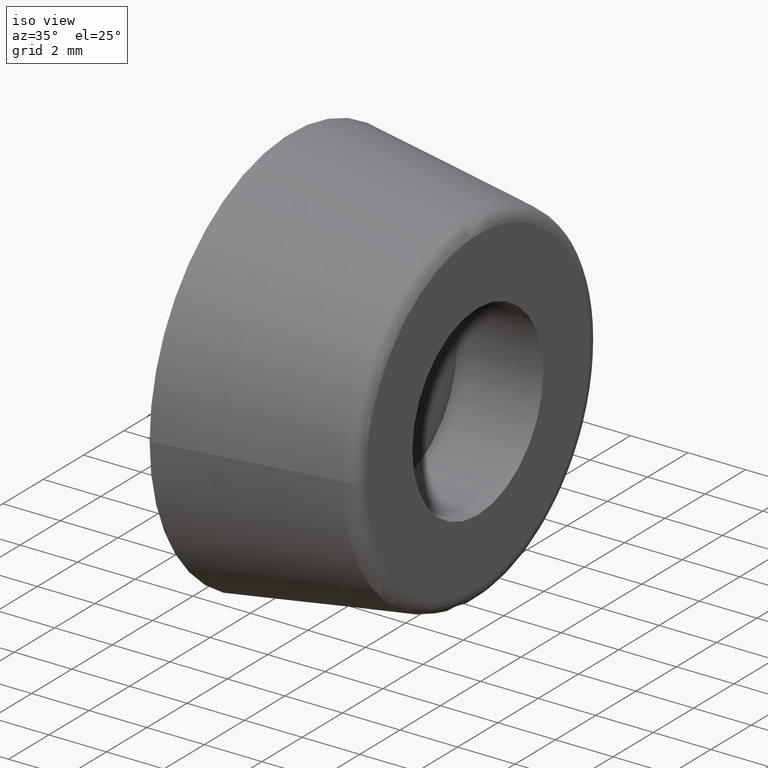
[diagram: clean part render]
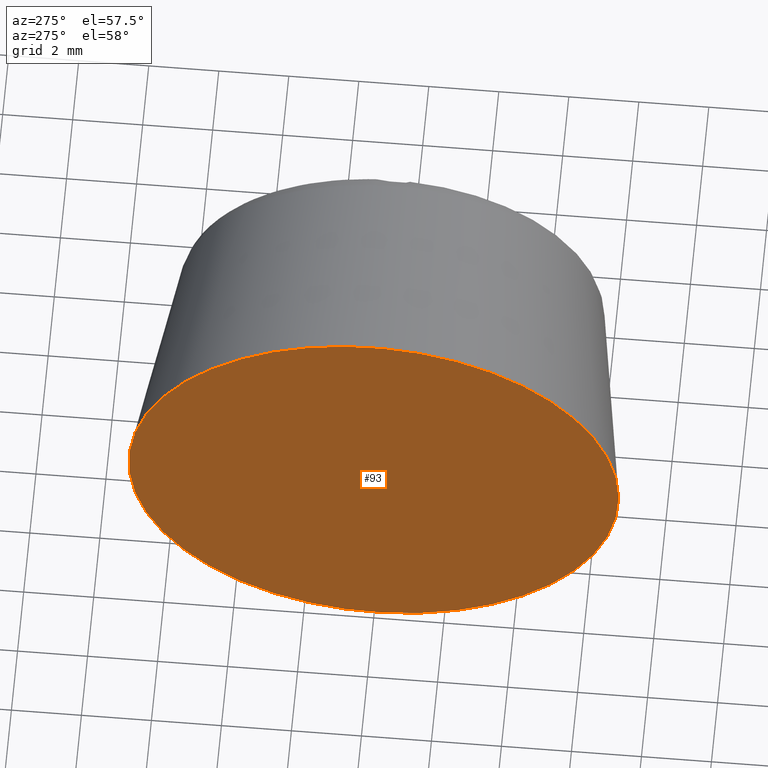
[diagram: tour spotlight — one face highlighted and labeled with its STEP entity id]
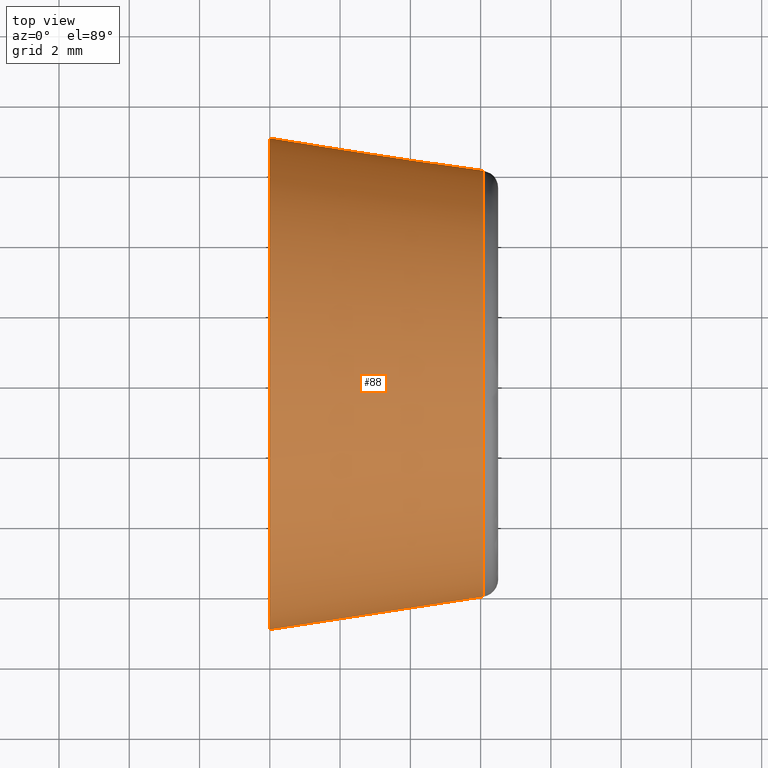
[diagram: tour spotlight — one face highlighted and labeled with its STEP entity id]
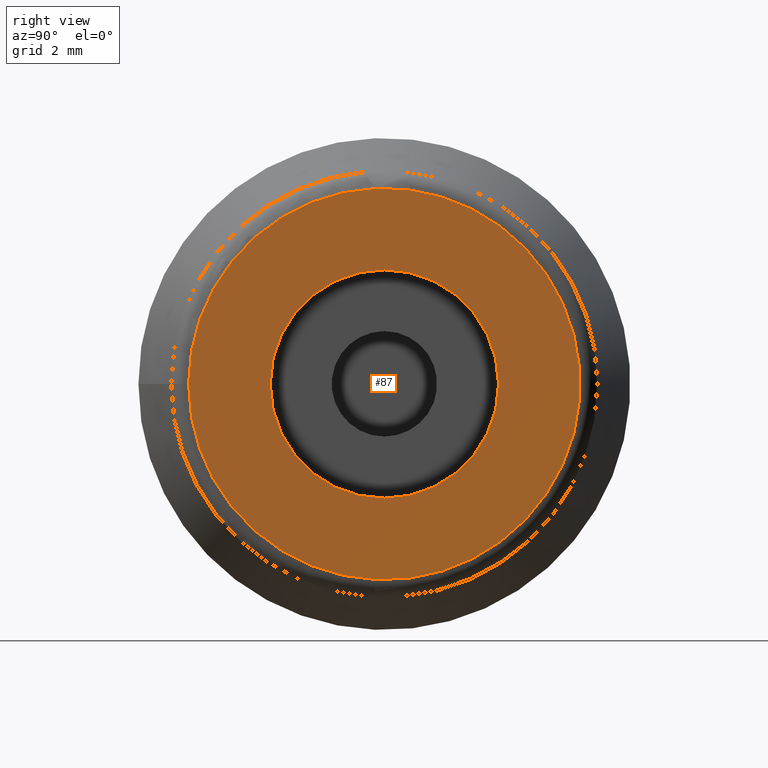
[diagram: tour spotlight — one face highlighted and labeled with its STEP entity id]
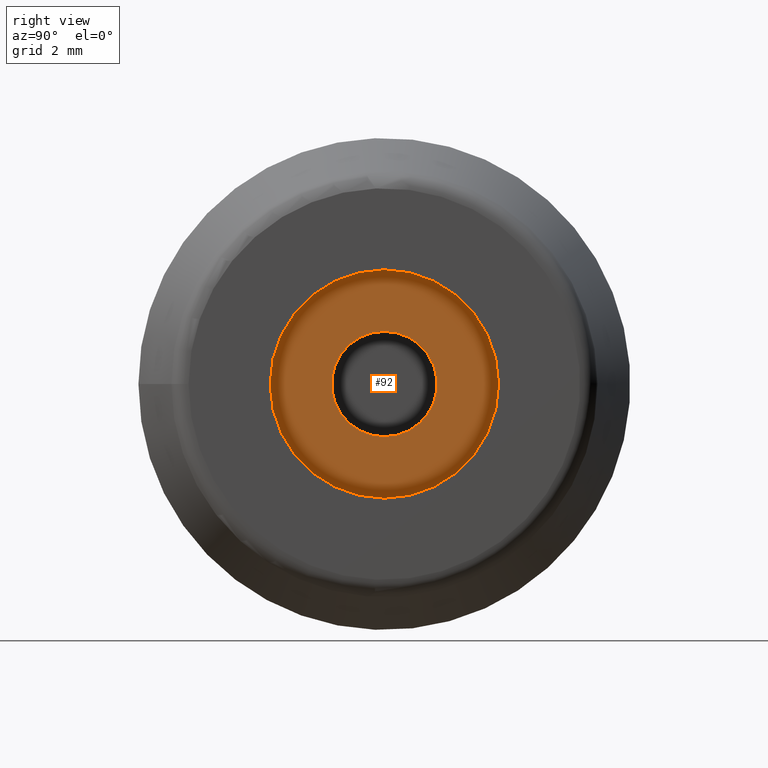
[diagram: tour spotlight — one face highlighted and labeled with its STEP entity id]
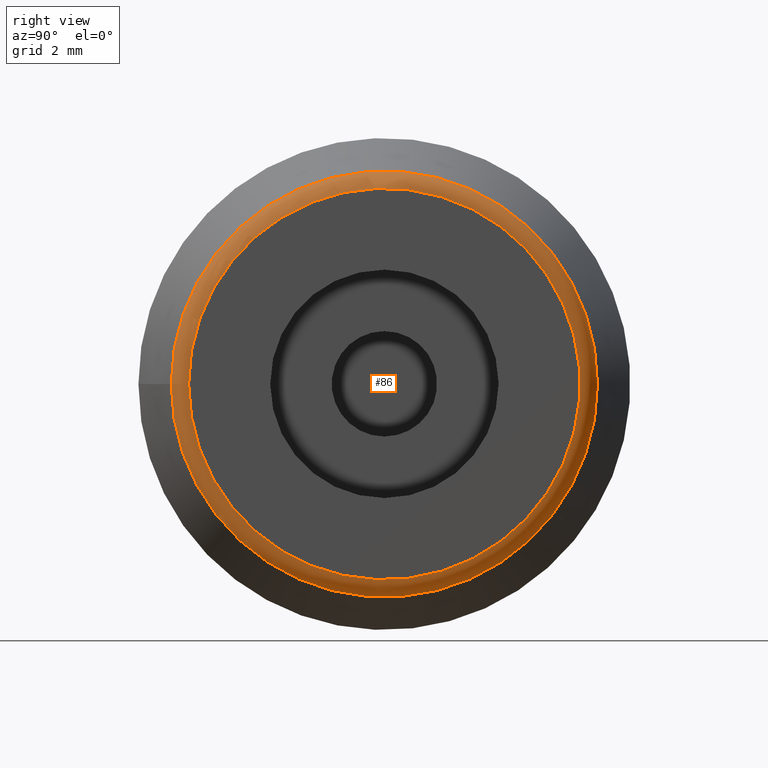
[diagram: tour spotlight — one face highlighted and labeled with its STEP entity id]
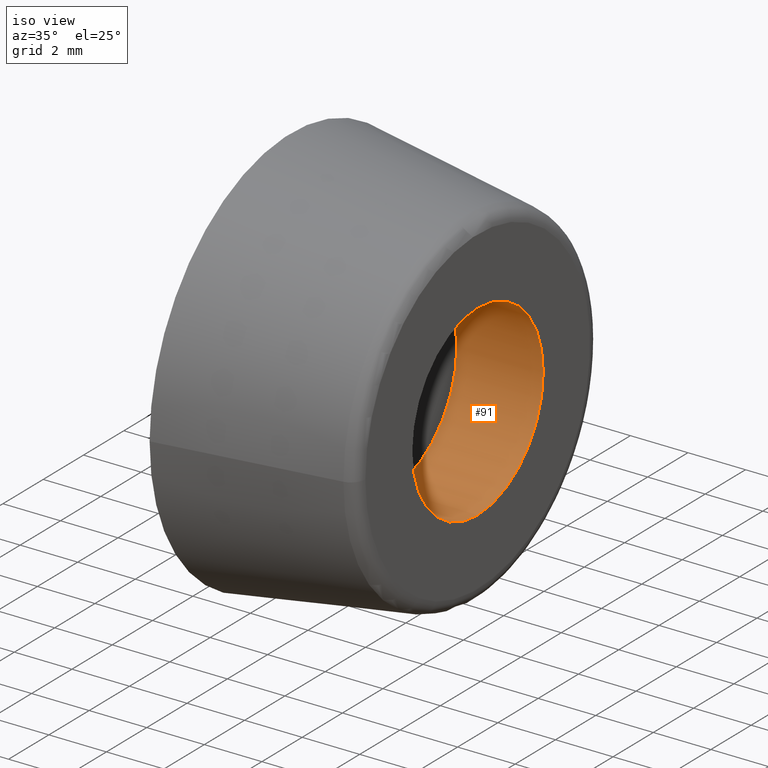
[diagram: tour spotlight — one face highlighted and labeled with its STEP entity id]
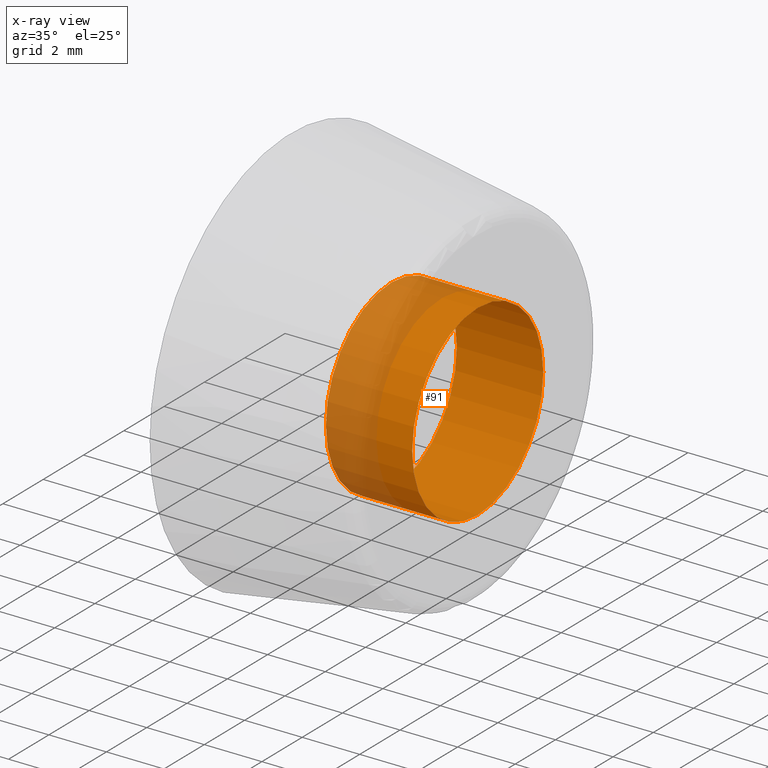
[diagram: x-ray of the same camera — body ghosted, this tour face saturated]
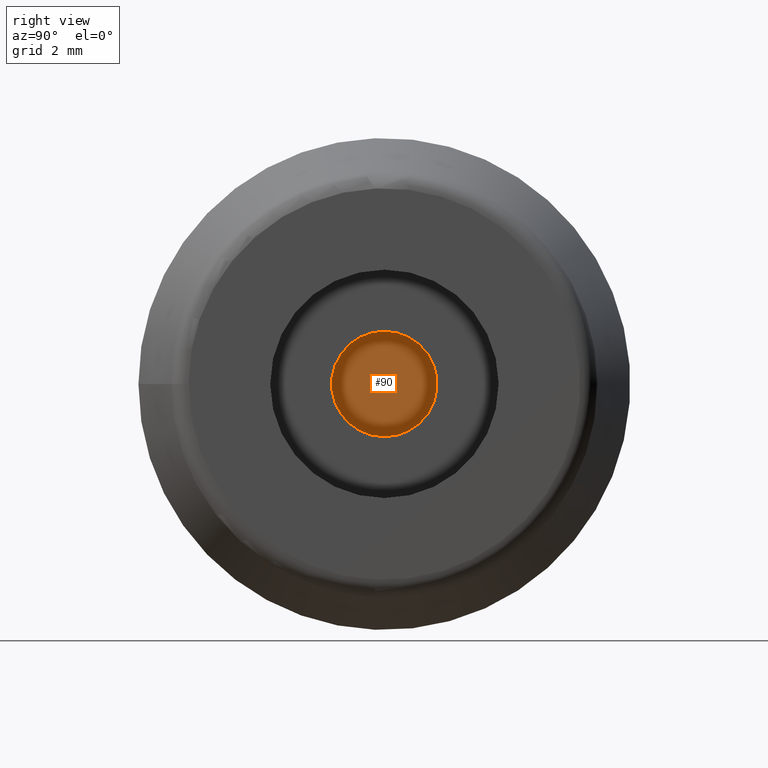
[diagram: tour spotlight — one face highlighted and labeled with its STEP entity id]
A machine part: a face-by-face anatomy tour. The part has 8 B-rep faces; the first image is the clean iso view, then the 7 largest visible faces are spotlighted one at a time (largest first), each with its STEP entity span.

Face 1 — auxiliary view, entity #93. In plain terms, the highlighted planar face has unit normal (1, 0, 0).
Definition (entity closure, byte-faithful):
#21=PLANE('',#110);
#35=FACE_OUTER_BOUND('',#49,.T.);
#49=EDGE_LOOP('',(#84));
#53=CIRCLE('',#102,7.);
#60=VERTEX_POINT('',#153);
#67=EDGE_CURVE('',#60,#60,#53,.T.);
#84=ORIENTED_EDGE('',*,*,#67,.F.);
#93=ADVANCED_FACE('',(#35),#21,.F.);
#102=AXIS2_PLACEMENT_3D('',#154,#125,#126);
#110=AXIS2_PLACEMENT_3D('',#165,#141,#142);
#125=DIRECTION('center_axis',(1.,0.,0.));
#126=DIRECTION('ref_axis',(0.,-1.,0.));
#141=DIRECTION('center_axis',(1.,0.,0.));
#142=DIRECTION('ref_axis',(0.,0.,-1.));
#153=CARTESIAN_POINT('',(0.,-7.,0.));
#154=CARTESIAN_POINT('Origin',(0.,0.,0.));
#165=CARTESIAN_POINT('Origin',(0.,0.,0.));

Face 2 — top view, entity #88. In plain terms, the highlighted conical surface has half-angle 8.746 deg.
Definition (entity closure, byte-faithful):
#17=CONICAL_SURFACE('',#101,7.,8.74616226255521);
#24=FACE_BOUND('',#41,.T.);
#30=FACE_OUTER_BOUND('',#40,.T.);
#40=EDGE_LOOP('',(#75));
#41=EDGE_LOOP('',(#76));
#51=CIRCLE('',#98,6.06522637044201);
#53=CIRCLE('',#102,7.);
#58=VERTEX_POINT('',#147);
#60=VERTEX_POINT('',#153);
#65=EDGE_CURVE('',#58,#58,#51,.T.);
#67=EDGE_CURVE('',#60,#60,#53,.T.);
#75=ORIENTED_EDGE('',*,*,#67,.T.);
#76=ORIENTED_EDGE('',*,*,#65,.F.);
#88=ADVANCED_FACE('',(#30,#24),#17,.T.);
#98=AXIS2_PLACEMENT_3D('',#148,#117,#118);
#101=AXIS2_PLACEMENT_3D('',#152,#123,#124);
#102=AXIS2_PLACEMENT_3D('',#154,#125,#126);
#117=DIRECTION('center_axis',(1.,0.,0.));
#118=DIRECTION('ref_axis',(0.,1.,1.22464679914735E-16));
#123=DIRECTION('center_axis',(-1.,0.,0.));
#124=DIRECTION('ref_axis',(0.,-1.,0.));
#125=DIRECTION('center_axis',(1.,0.,0.));
#126=DIRECTION('ref_axis',(0.,-1.,0.));
#147=CARTESIAN_POINT('',(6.07602859212697,-6.06522637044201,-1.48555201213318E-15));
#148=CARTESIAN_POINT('Origin',(6.07602859212697,0.,0.));
#152=CARTESIAN_POINT('Origin',(0.,0.,0.));
#153=CARTESIAN_POINT('',(0.,-7.,0.));
#154=CARTESIAN_POINT('Origin',(0.,0.,0.));

Face 3 — right view, entity #87. In plain terms, the highlighted planar face has unit normal (-1, 0, 0).
Definition (entity closure, byte-faithful):
#18=PLANE('',#99);
#23=FACE_BOUND('',#39,.T.);
#29=FACE_OUTER_BOUND('',#38,.T.);
#38=EDGE_LOOP('',(#73));
#39=EDGE_LOOP('',(#74));
#50=CIRCLE('',#97,5.5710405216167);
#52=CIRCLE('',#100,3.25);
#57=VERTEX_POINT('',#145);
#59=VERTEX_POINT('',#150);
#64=EDGE_CURVE('',#57,#57,#50,.T.);
#66=EDGE_CURVE('',#59,#59,#52,.T.);
#73=ORIENTED_EDGE('',*,*,#64,.F.);
#74=ORIENTED_EDGE('',*,*,#66,.T.);
#87=ADVANCED_FACE('',(#29,#23),#18,.F.);
#97=AXIS2_PLACEMENT_3D('',#146,#115,#116);
#99=AXIS2_PLACEMENT_3D('',#149,#119,#120);
#100=AXIS2_PLACEMENT_3D('',#151,#121,#122);
#115=DIRECTION('center_axis',(-1.,0.,0.));
#116=DIRECTION('ref_axis',(0.,1.,1.22464679914735E-16));
#119=DIRECTION('center_axis',(-1.,0.,0.));
#120=DIRECTION('ref_axis',(0.,0.,1.));
#121=DIRECTION('center_axis',(-1.,0.,0.));
#122=DIRECTION('ref_axis',(0.,0.,1.));
#145=CARTESIAN_POINT('',(6.5,-5.5710405216167,0.));
#146=CARTESIAN_POINT('Origin',(6.5,0.,0.));
#149=CARTESIAN_POINT('Origin',(6.5,0.,0.));
#150=CARTESIAN_POINT('',(6.5,3.9801020972289E-16,-3.25));
#151=CARTESIAN_POINT('Origin',(6.5,0.,0.));

Face 4 — right view, entity #92. In plain terms, the highlighted planar face has unit normal (1, 0, 0).
Definition (entity closure, byte-faithful):
#20=PLANE('',#109);
#27=FACE_BOUND('',#48,.T.);
#34=FACE_OUTER_BOUND('',#47,.T.);
#47=EDGE_LOOP('',(#82));
#48=EDGE_LOOP('',(#83));
#55=CIRCLE('',#105,1.5);
#56=CIRCLE('',#108,3.25);
#62=VERTEX_POINT('',#158);
#63=VERTEX_POINT('',#162);
#69=EDGE_CURVE('',#62,#62,#55,.T.);
#70=EDGE_CURVE('',#63,#63,#56,.T.);
#82=ORIENTED_EDGE('',*,*,#70,.F.);
#83=ORIENTED_EDGE('',*,*,#69,.T.);
#92=ADVANCED_FACE('',(#34,#27),#20,.T.);
#105=AXIS2_PLACEMENT_3D('',#159,#131,#132);
#108=AXIS2_PLACEMENT_3D('',#163,#137,#138);
#109=AXIS2_PLACEMENT_3D('',#164,#139,#140);
#131=DIRECTION('center_axis',(-1.,0.,0.));
#132=DIRECTION('ref_axis',(0.,0.,1.));
#137=DIRECTION('center_axis',(-1.,0.,0.));
#138=DIRECTION('ref_axis',(0.,0.,1.));
#139=DIRECTION('center_axis',(1.,0.,0.));
#140=DIRECTION('ref_axis',(0.,0.,-1.));
#158=CARTESIAN_POINT('',(3.5,1.83697019872103E-16,-1.5));
#159=CARTESIAN_POINT('Origin',(3.5,0.,0.));
#162=CARTESIAN_POINT('',(3.5,3.9801020972289E-16,-3.25));
#163=CARTESIAN_POINT('Origin',(3.5,0.,0.));
#164=CARTESIAN_POINT('Origin',(3.5,0.,3.31675174769075E-17));

Face 5 — right view, entity #86. In plain terms, the highlighted toroidal blend (fillet) surface has major radius 5.571 mm and minor (blend) radius 0.5 mm.
Definition (entity closure, byte-faithful):
#22=FACE_BOUND('',#37,.T.);
#28=FACE_OUTER_BOUND('',#36,.T.);
#36=EDGE_LOOP('',(#71));
#37=EDGE_LOOP('',(#72));
#50=CIRCLE('',#97,5.5710405216167);
#51=CIRCLE('',#98,6.06522637044201);
#57=VERTEX_POINT('',#145);
#58=VERTEX_POINT('',#147);
#64=EDGE_CURVE('',#57,#57,#50,.T.);
#65=EDGE_CURVE('',#58,#58,#51,.T.);
#71=ORIENTED_EDGE('',*,*,#64,.T.);
#72=ORIENTED_EDGE('',*,*,#65,.T.);
#85=TOROIDAL_SURFACE('',#96,5.5710405216167,0.5);
#86=ADVANCED_FACE('',(#28,#22),#85,.T.);
#96=AXIS2_PLACEMENT_3D('',#144,#113,#114);
#97=AXIS2_PLACEMENT_3D('',#146,#115,#116);
#98=AXIS2_PLACEMENT_3D('',#148,#117,#118);
#113=DIRECTION('center_axis',(-1.,0.,0.));
#114=DIRECTION('ref_axis',(0.,0.,1.));
#115=DIRECTION('center_axis',(-1.,0.,0.));
#116=DIRECTION('ref_axis',(0.,1.,1.22464679914735E-16));
#117=DIRECTION('center_axis',(1.,0.,0.));
#118=DIRECTION('ref_axis',(0.,1.,1.22464679914735E-16));
#144=CARTESIAN_POINT('Origin',(6.,0.,0.));
#145=CARTESIAN_POINT('',(6.5,-5.5710405216167,0.));
#146=CARTESIAN_POINT('Origin',(6.5,0.,0.));
#147=CARTESIAN_POINT('',(6.07602859212697,-6.06522637044201,-1.48555201213318E-15));
#148=CARTESIAN_POINT('Origin',(6.07602859212697,0.,0.));

Face 6 — iso view, entity #91. An x-ray twin of the same camera follows (body ghosted, this face saturated) — the face is partly hidden behind the body. In plain terms, the highlighted cylindrical surface (bore or boss wall) has radius 3.25 mm, axis along (-1, 0, 0).
Definition (entity closure, byte-faithful):
#16=CYLINDRICAL_SURFACE('',#107,3.25);
#26=FACE_BOUND('',#46,.T.);
#33=FACE_OUTER_BOUND('',#45,.T.);
#45=EDGE_LOOP('',(#80));
#46=EDGE_LOOP('',(#81));
#52=CIRCLE('',#100,3.25);
#56=CIRCLE('',#108,3.25);
#59=VERTEX_POINT('',#150);
#63=VERTEX_POINT('',#162);
#66=EDGE_CURVE('',#59,#59,#52,.T.);
#70=EDGE_CURVE('',#63,#63,#56,.T.);
#80=ORIENTED_EDGE('',*,*,#70,.T.);
#81=ORIENTED_EDGE('',*,*,#66,.F.);
#91=ADVANCED_FACE('',(#33,#26),#16,.F.);
#100=AXIS2_PLACEMENT_3D('',#151,#121,#122);
#107=AXIS2_PLACEMENT_3D('',#161,#135,#136);
#108=AXIS2_PLACEMENT_3D('',#163,#137,#138);
#121=DIRECTION('center_axis',(-1.,0.,0.));
#122=DIRECTION('ref_axis',(0.,0.,1.));
#135=DIRECTION('center_axis',(-1.,0.,0.));
#136=DIRECTION('ref_axis',(0.,0.,1.));
#137=DIRECTION('center_axis',(-1.,0.,0.));
#138=DIRECTION('ref_axis',(0.,0.,1.));
#150=CARTESIAN_POINT('',(6.5,3.9801020972289E-16,-3.25));
#151=CARTESIAN_POINT('Origin',(6.5,0.,0.));
#161=CARTESIAN_POINT('Origin',(6.5,0.,0.));
#162=CARTESIAN_POINT('',(3.5,3.9801020972289E-16,-3.25));
#163=CARTESIAN_POINT('Origin',(3.5,0.,0.));

Face 7 — right view, entity #90. In plain terms, the highlighted planar face has unit normal (1, 0, 0).
Definition (entity closure, byte-faithful):
#19=PLANE('',#106);
#32=FACE_OUTER_BOUND('',#44,.T.);
#44=EDGE_LOOP('',(#79));
#54=CIRCLE('',#104,1.5);
#61=VERTEX_POINT('',#156);
#68=EDGE_CURVE('',#61,#61,#54,.T.);
#79=ORIENTED_EDGE('',*,*,#68,.F.);
#90=ADVANCED_FACE('',(#32),#19,.T.);
#104=AXIS2_PLACEMENT_3D('',#157,#129,#130);
#106=AXIS2_PLACEMENT_3D('',#160,#133,#134);
#129=DIRECTION('center_axis',(-1.,0.,0.));
#130=DIRECTION('ref_axis',(0.,0.,1.));
#133=DIRECTION('center_axis',(1.,0.,0.));
#134=DIRECTION('ref_axis',(0.,0.,-1.));
#156=CARTESIAN_POINT('',(0.2,1.83697019872103E-16,-1.5));
#157=CARTESIAN_POINT('Origin',(0.2,0.,0.));
#160=CARTESIAN_POINT('Origin',(0.2,-3.85494105772624E-17,9.24069061438667E-17));